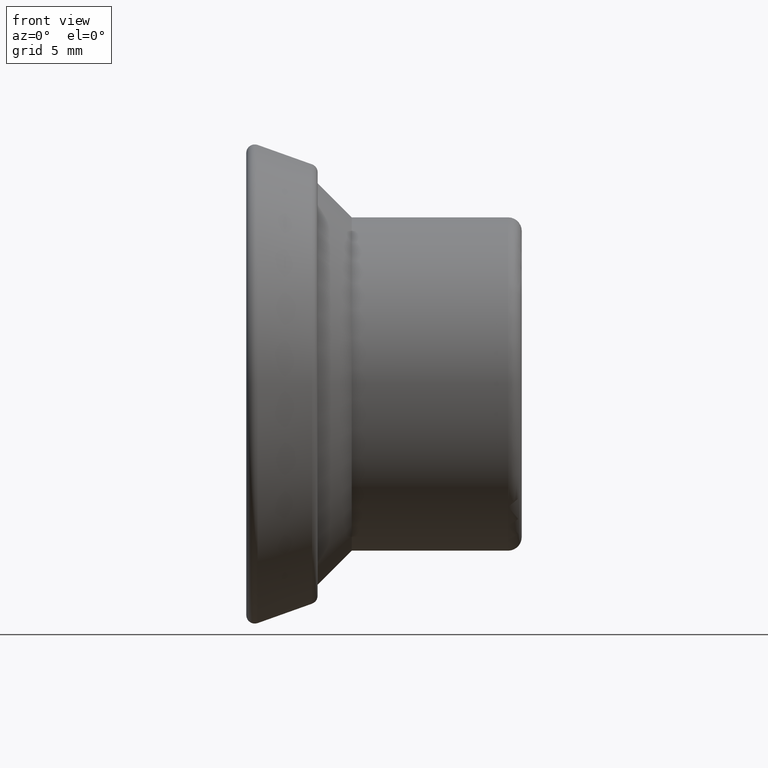
[diagram: clean part render]
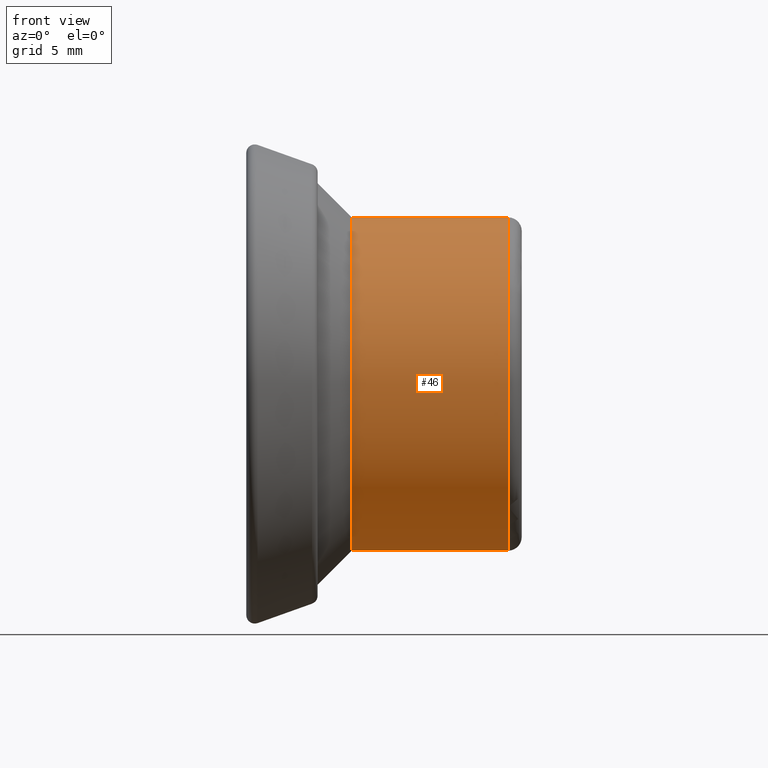
[diagram: same view with one face highlighted and labeled with its STEP entity id]
A machine part, front view. The second image highlights one B-rep face of the part: STEP entity #46.
In plain terms, the highlighted cylindrical surface (partial cylindrical patch) has radius 9.8 mm, axis along (1, 0, 0).
Its self-contained STEP definition (entity closure, byte-faithful):
#39=CYLINDRICAL_SURFACE('',#501,9.8);
#46=ADVANCED_FACE('',(#75),#39,.T.);
#75=FACE_OUTER_BOUND('',#108,.F.);
#108=EDGE_LOOP('',(#142,#143,#144,#145));
#142=ORIENTED_EDGE('',*,*,#301,.F.);
#143=ORIENTED_EDGE('',*,*,#295,.T.);
#144=ORIENTED_EDGE('',*,*,#302,.T.);
#145=ORIENTED_EDGE('',*,*,#294,.F.);
#265=LINE('',#747,#277);
#266=LINE('',#748,#278);
#277=VECTOR('',#559,9.2);
#278=VECTOR('',#560,9.2);
#294=EDGE_CURVE('',#419,#420,#352,.T.);
#295=EDGE_CURVE('',#418,#417,#353,.T.);
#301=EDGE_CURVE('',#418,#419,#265,.T.);
#302=EDGE_CURVE('',#417,#420,#266,.T.);
#352=CIRCLE('',#459,9.8);
#353=CIRCLE('',#460,9.8);
#417=VERTEX_POINT('',#727);
#418=VERTEX_POINT('',#728);
#419=VERTEX_POINT('',#729);
#420=VERTEX_POINT('',#730);
#459=AXIS2_PLACEMENT_3D('',#740,#545,#546);
#460=AXIS2_PLACEMENT_3D('',#741,#547,#548);
#501=AXIS2_PLACEMENT_3D('',#794,#641,#642);
#545=DIRECTION('',(1.,0.,0.));
#546=DIRECTION('',(0.,0.,1.));
#547=DIRECTION('',(1.,0.,0.));
#548=DIRECTION('',(0.,0.,1.));
#559=DIRECTION('',(-1.,0.,0.));
#560=DIRECTION('',(-1.,0.,0.));
#641=DIRECTION('',(1.,0.,0.));
#642=DIRECTION('',(0.,0.,1.));
#727=CARTESIAN_POINT('',(65.9150000130991,-49.9999958811694,-9.8000001271772));
#728=CARTESIAN_POINT('',(65.9150000130991,-49.9999958811694,9.7999998728228));
#729=CARTESIAN_POINT('',(56.7150000130991,-49.9999958811694,9.7999998728228));
#730=CARTESIAN_POINT('',(56.7150000130991,-49.9999958811694,-9.8000001271772));
#740=CARTESIAN_POINT('',(56.7150000130991,-49.9999958811694,-1.27177200410335E-07));
#741=CARTESIAN_POINT('',(65.9150000130991,-49.9999958811694,-1.27177199846998E-07));
#747=CARTESIAN_POINT('',(65.9150000130991,-49.9999958811694,9.7999998728228));
#748=CARTESIAN_POINT('',(65.9150000130991,-49.9999958811694,-9.8000001271772));
#794=CARTESIAN_POINT('',(66.7150000130991,-49.9999958811694,-1.27177199798012E-07));